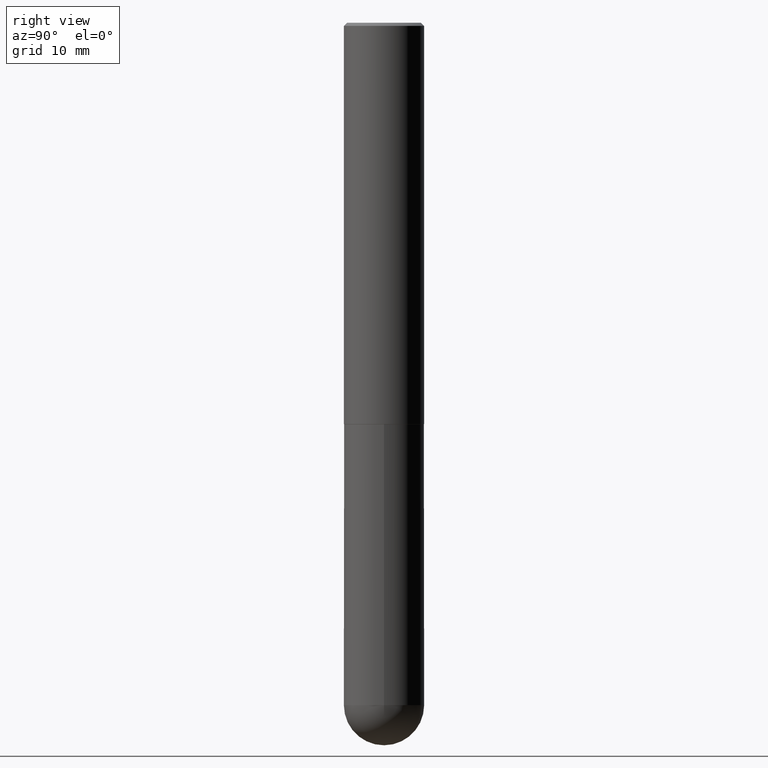
[diagram: clean part render]
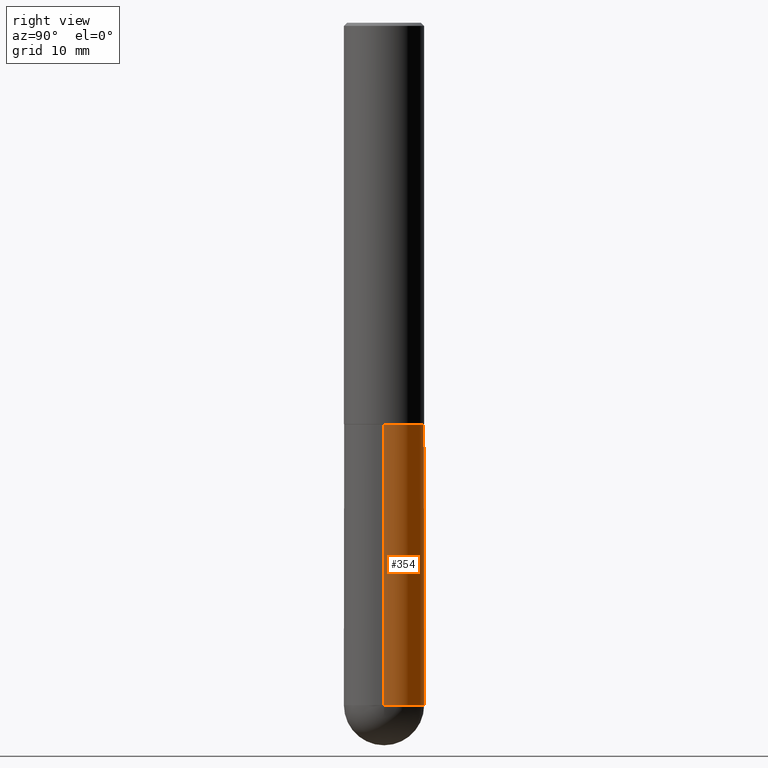
[diagram: same view with one face highlighted and labeled with its STEP entity id]
A machine part, right view. The second image highlights one B-rep face of the part: STEP entity #354.
In plain terms, the highlighted cylindrical surface (partial cylindrical patch) has radius 6.35 mm, axis along (-0, 0, 1).
Its self-contained STEP definition (entity closure, byte-faithful):
#4 = CARTESIAN_POINT ( 'NONE',  ( 1.039324242628683054E-28, -1.483879569008337040E-14, -4.250000000000000000 ) ) ;
#10 = CARTESIAN_POINT ( 'NONE',  ( 0.000000000000000000, 0.000000000000000000, 0.000000000000000000 ) ) ;
#19 = ORIENTED_EDGE ( 'NONE', *, *, #37, .T. ) ;
#27 = EDGE_CURVE ( 'NONE', #371, #387, #277, .T. ) ;
#34 = CARTESIAN_POINT ( 'NONE',  ( 1.745740669421669032E-15, 0.2499999999999849842, -4.250000000000001776 ) ) ;
#37 = EDGE_CURVE ( 'NONE', #52, #41, #57, .T. ) ;
#41 = VERTEX_POINT ( 'NONE', #207 ) ;
#42 = CYLINDRICAL_SURFACE ( 'NONE', #282, 0.2500000000000000000 ) ;
#44 = FACE_OUTER_BOUND ( 'NONE', #374, .T. ) ;
#45 = CIRCLE ( 'NONE', #101, 0.2500000000000000000 ) ;
#52 = VERTEX_POINT ( 'NONE', #34 ) ;
#57 = CIRCLE ( 'NONE', #66, 0.2500000000000000000 ) ;
#62 = LINE ( 'NONE', #86, #208 ) ;
#66 = AXIS2_PLACEMENT_3D ( 'NONE', #343, #369, #77 ) ;
#69 = DIRECTION ( 'NONE',  ( -2.445468806185136597E-29, 3.491481338843145583E-15, 1.000000000000000000 ) ) ;
#75 = DIRECTION ( 'NONE',  ( -2.445468806185136597E-29, 3.491481338843145583E-15, 1.000000000000000000 ) ) ;
#77 = DIRECTION ( 'NONE',  ( 1.000000000000000000, -6.982962677686270655E-15, 0.000000000000000000 ) ) ;
#78 = DIRECTION ( 'NONE',  ( -2.445468806185136877E-29, 3.491481338843145188E-15, 1.000000000000000000 ) ) ;
#81 = ORIENTED_EDGE ( 'NONE', *, *, #27, .F. ) ;
#86 = CARTESIAN_POINT ( 'NONE',  ( -0.2500000000000000000, 1.776356839400250465E-15, -1.229733772563726445E-29 ) ) ;
#89 = CARTESIAN_POINT ( 'NONE',  ( 6.113672015462842613E-29, -8.728703347107864943E-15, -2.500000000000000000 ) ) ;
#101 = AXIS2_PLACEMENT_3D ( 'NONE', #4, #69, #203 ) ;
#114 = CARTESIAN_POINT ( 'NONE',  ( 0.2500000000000000000, -1.745740669421566678E-15, 1.219044193948983948E-29 ) ) ;
#119 = VERTEX_POINT ( 'NONE', #375 ) ;
#132 = CIRCLE ( 'NONE', #311, 0.2500000000000000000 ) ;
#145 = DIRECTION ( 'NONE',  ( 1.000000000000000000, -6.982962677686266711E-15, 4.876176775795935793E-29 ) ) ;
#165 = EDGE_CURVE ( 'NONE', #41, #119, #62, .T. ) ;
#183 = EDGE_CURVE ( 'NONE', #387, #119, #132, .T. ) ;
#184 = DIRECTION ( 'NONE',  ( 1.000000000000000000, -6.982962677686266711E-15, 0.000000000000000000 ) ) ;
#203 = DIRECTION ( 'NONE',  ( 1.000000000000000000, -6.982962677686270655E-15, 0.000000000000000000 ) ) ;
#207 = CARTESIAN_POINT ( 'NONE',  ( -0.2500000000000000000, -1.000739267919536879E-14, -4.250000000000000000 ) ) ;
#208 = VECTOR ( 'NONE', #356, 39.37007874015748143 ) ;
#244 = VECTOR ( 'NONE', #78, 39.37007874015748143 ) ;
#275 = ORIENTED_EDGE ( 'NONE', *, *, #165, .T. ) ;
#277 = LINE ( 'NONE', #114, #244 ) ;
#282 = AXIS2_PLACEMENT_3D ( 'NONE', #10, #75, #145 ) ;
#297 = EDGE_CURVE ( 'NONE', #371, #52, #45, .T. ) ;
#301 = DIRECTION ( 'NONE',  ( -2.445468806185136597E-29, 3.491481338843145583E-15, 1.000000000000000000 ) ) ;
#311 = AXIS2_PLACEMENT_3D ( 'NONE', #89, #301, #184 ) ;
#343 = CARTESIAN_POINT ( 'NONE',  ( 1.039324242628683054E-28, -1.483879569008337040E-14, -4.250000000000000000 ) ) ;
#351 = ORIENTED_EDGE ( 'NONE', *, *, #183, .F. ) ;
#354 = ADVANCED_FACE ( 'NONE', ( #44 ), #42, .T. ) ;
#356 = DIRECTION ( 'NONE',  ( -2.445468806185136877E-29, 3.491481338843145188E-15, 1.000000000000000000 ) ) ;
#365 = CARTESIAN_POINT ( 'NONE',  ( 0.2500000000000000000, -1.352949018801718751E-14, -4.250000000000000000 ) ) ;
#369 = DIRECTION ( 'NONE',  ( -2.445468806185136597E-29, 3.491481338843145583E-15, 1.000000000000000000 ) ) ;
#371 = VERTEX_POINT ( 'NONE', #365 ) ;
#374 = EDGE_LOOP ( 'NONE', ( #19, #275, #351, #81, #393 ) ) ;
#375 = CARTESIAN_POINT ( 'NONE',  ( -0.2500000000000000000, -1.000739267919536563E-14, -2.500000000000000000 ) ) ;
#387 = VERTEX_POINT ( 'NONE', #390 ) ;
#390 = CARTESIAN_POINT ( 'NONE',  ( 0.2500000000000000000, -1.047444401652943162E-14, -2.500000000000000000 ) ) ;
#393 = ORIENTED_EDGE ( 'NONE', *, *, #297, .T. ) ;